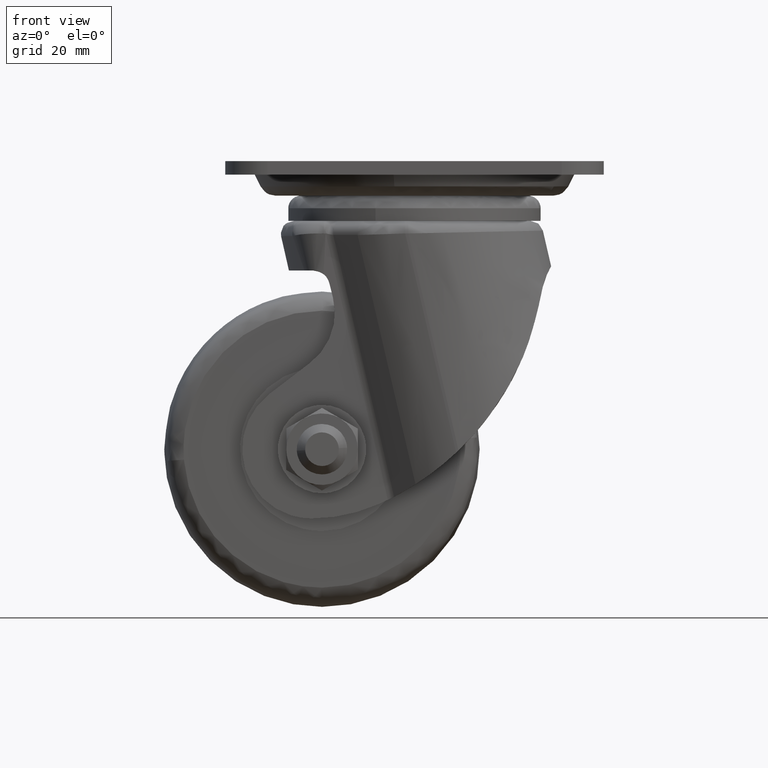
[diagram: clean part render]
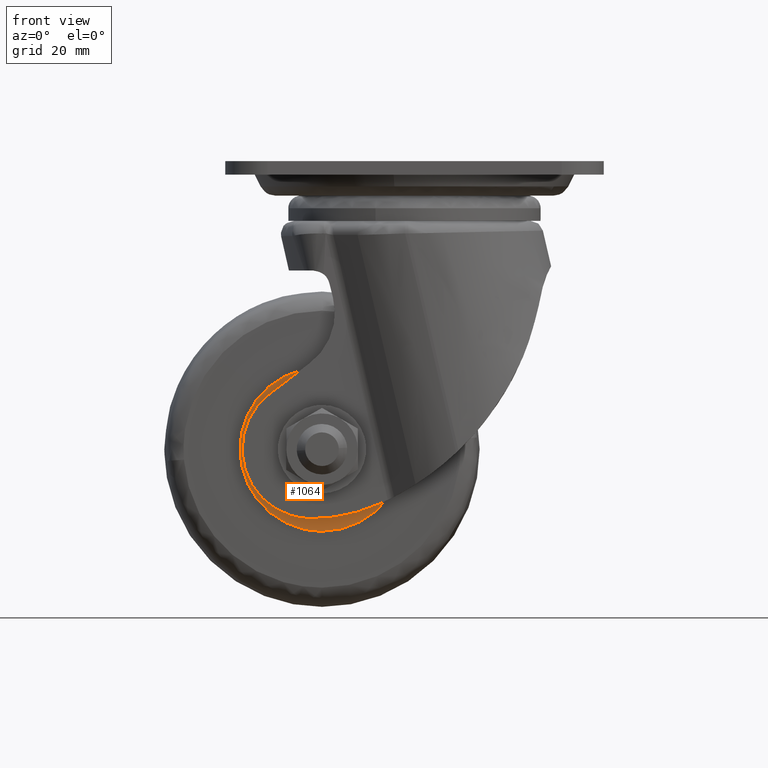
[diagram: same view with one face highlighted and labeled with its STEP entity id]
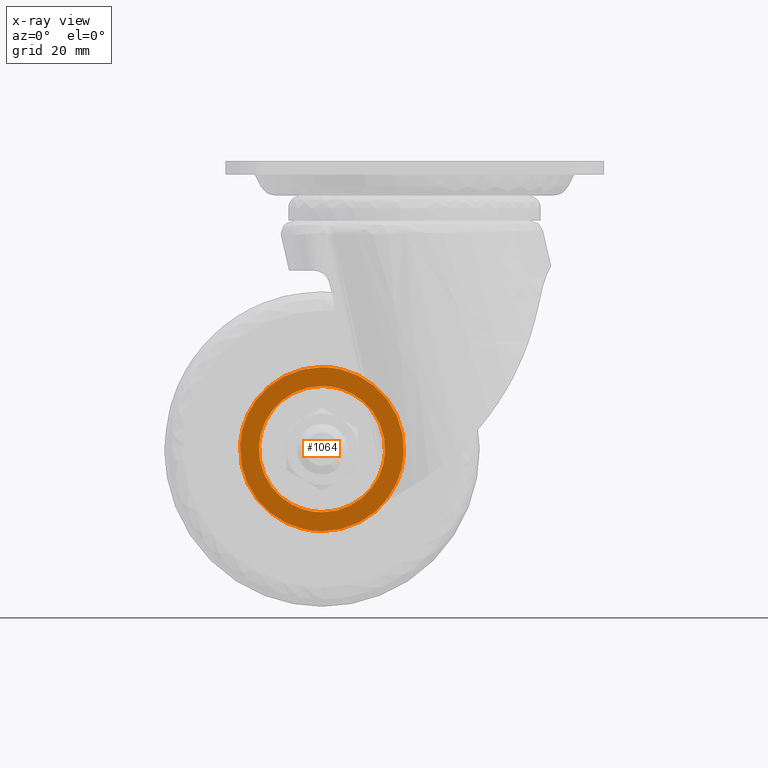
[diagram: x-ray of the same camera — body ghosted, the highlighted face saturated]
A machine part, front view. The second image highlights one B-rep face of the part: STEP entity #1064.
The next image is the same camera in x-ray: the body ghosted, the highlighted face saturated — about 0% of this face is hidden behind the body in this view.
In plain terms, the highlighted face is a freeform B-spline surface patch.
Its self-contained STEP definition (entity closure, byte-faithful):
#884=CARTESIAN_POINT('',(-7.027978023676605,-19.899999999999999,-69.415728093098195));
#885=VERTEX_POINT('',#884);
#891=CARTESIAN_POINT('',(-22.0,-19.899999999999999,-53.500000000000007));
#892=VERTEX_POINT('',#891);
#893=CARTESIAN_POINT('',(-7.027978023676604,-19.899999999999999,-69.415728093098195));
#894=CARTESIAN_POINT('',(-7.0,-19.900000000000006,-68.958291449516608));
#895=CARTESIAN_POINT('',(-7.0,-19.899999999999999,-68.500000000000000));
#896=CARTESIAN_POINT('',(-6.999999999999999,-19.900000000000009,-53.500000000000007));
#897=CARTESIAN_POINT('',(-22.0,-19.899999999999999,-53.500000000000007));
#905=(BOUNDED_CURVE()B_SPLINE_CURVE(2,(#893,#894,#895,#896,#897),.UNSPECIFIED.,.F.,.U.)B_SPLINE_CURVE_WITH_KNOTS((3,2,3),(0.239332962241100,0.250000000000000,0.500000000000000),.UNSPECIFIED.)CURVE()GEOMETRIC_REPRESENTATION_ITEM()RATIONAL_B_SPLINE_CURVE((0.976072041671341,0.987502787902365,1.0,0.707106781186547,1.0))REPRESENTATION_ITEM(''));
#906=EDGE_CURVE('',#885,#892,#905,.T.);
#908=CARTESIAN_POINT('',(-36.972021976323390,-19.899999999999999,-67.584271906901805));
#909=VERTEX_POINT('',#908);
#910=CARTESIAN_POINT('',(-22.0,-19.899999999999999,-53.500000000000007));
#911=CARTESIAN_POINT('',(-36.110591003514294,-19.900000000000006,-53.500000000000000));
#912=CARTESIAN_POINT('',(-36.972021976323397,-19.900000000000002,-67.584271906901819));
#920=(BOUNDED_CURVE()B_SPLINE_CURVE(2,(#910,#911,#912),.UNSPECIFIED.,.F.,.U.)B_SPLINE_CURVE_WITH_KNOTS((3,3),(0.500000000000000,0.739332962241100),.UNSPECIFIED.)CURVE()GEOMETRIC_REPRESENTATION_ITEM()RATIONAL_B_SPLINE_CURVE((1.0,0.719603993284183,0.976072041671341))REPRESENTATION_ITEM(''));
#921=EDGE_CURVE('',#892,#909,#920,.T.);
#953=CARTESIAN_POINT('',(-22.0,-19.899999999999999,-83.500000000000000));
#954=VERTEX_POINT('',#953);
#955=CARTESIAN_POINT('',(-36.972021976323390,-19.900000000000006,-67.584271906901805));
#956=CARTESIAN_POINT('',(-37.0,-19.900000000000006,-68.041708550483392));
#957=CARTESIAN_POINT('',(-37.0,-19.899999999999999,-68.500000000000000));
#958=CARTESIAN_POINT('',(-37.000000000000007,-19.900000000000009,-83.500000000000000));
#959=CARTESIAN_POINT('',(-22.0,-19.899999999999999,-83.500000000000000));
#967=(BOUNDED_CURVE()B_SPLINE_CURVE(2,(#955,#956,#957,#958,#959),.UNSPECIFIED.,.F.,.U.)B_SPLINE_CURVE_WITH_KNOTS((3,2,3),(0.739332962241100,0.750000000000000,1.0),.UNSPECIFIED.)CURVE()GEOMETRIC_REPRESENTATION_ITEM()RATIONAL_B_SPLINE_CURVE((0.976072041671341,0.987502787902365,1.0,0.707106781186547,1.0))REPRESENTATION_ITEM(''));
#968=EDGE_CURVE('',#909,#954,#967,.T.);
#970=CARTESIAN_POINT('',(-22.0,-19.899999999999999,-83.500000000000000));
#971=CARTESIAN_POINT('',(-7.889408996485720,-19.900000000000002,-83.500000000000014));
#972=CARTESIAN_POINT('',(-7.027978023676604,-19.899999999999999,-69.415728093098195));
#980=(BOUNDED_CURVE()B_SPLINE_CURVE(2,(#970,#971,#972),.UNSPECIFIED.,.F.,.U.)B_SPLINE_CURVE_WITH_KNOTS((3,3),(0.0,0.239332962241100),.UNSPECIFIED.)CURVE()GEOMETRIC_REPRESENTATION_ITEM()RATIONAL_B_SPLINE_CURVE((1.0,0.719603993284183,0.976072041671341))REPRESENTATION_ITEM(''));
#981=EDGE_CURVE('',#954,#885,#980,.T.);
#987=CARTESIAN_POINT('',(-43.447570052529180,-19.899999999999999,-89.948049924410455));
#988=CARTESIAN_POINT('',(-43.447570052529180,-19.899999999999999,-47.051949029528053));
#989=CARTESIAN_POINT('',(-0.552430644845163,-19.899999999999999,-89.948049924410455));
#990=CARTESIAN_POINT('',(-0.552430644845163,-19.899999999999999,-47.051949029528053));
#991=B_SPLINE_SURFACE_WITH_KNOTS('',1,1,((#987,#989),(#988,#990)),.UNSPECIFIED.,.F.,.F.,.U.,(2,2),(2,2),(0.0,42.896100894882402),(0.0,42.895139407684013),.UNSPECIFIED.);
#992=CARTESIAN_POINT('',(-22.0,-19.899999999999999,-88.000000000000014));
#993=VERTEX_POINT('',#992);
#994=CARTESIAN_POINT('',(-2.536369674674880,-19.899999999997259,-69.690417808274361));
#995=VERTEX_POINT('',#994);
#996=CARTESIAN_POINT('',(-22.0,-19.899999999999999,-88.000000000000014));
#997=CARTESIAN_POINT('',(-3.656204584122659,-19.899999999998631,-87.999999999999389));
#998=CARTESIAN_POINT('',(-2.536369674674881,-19.899999999997263,-69.690417808274361));
#1006=(BOUNDED_CURVE()B_SPLINE_CURVE(2,(#996,#997,#998),.UNSPECIFIED.,.F.,.U.)B_SPLINE_CURVE_WITH_KNOTS((3,3),(0.0,0.239333216782247),.UNSPECIFIED.)CURVE()GEOMETRIC_REPRESENTATION_ITEM()RATIONAL_B_SPLINE_CURVE((1.0,0.719603695070679,0.976072587202081))REPRESENTATION_ITEM(''));
#1007=EDGE_CURVE('',#993,#995,#1006,.T.);
#1008=ORIENTED_EDGE('',*,*,#1007,.T.);
#1009=CARTESIAN_POINT('',(-22.0,-19.899999999999999,-49.0));
#1010=VERTEX_POINT('',#1009);
#1011=CARTESIAN_POINT('',(-2.536369674674881,-19.899999999997263,-69.690417808274361));
#1012=CARTESIAN_POINT('',(-2.500000000020876,-19.899999999997302,-69.095764487741405));
#1013=CARTESIAN_POINT('',(-2.500000000020549,-19.899999999997348,-68.499999999998749));
#1014=CARTESIAN_POINT('',(-2.500000000009962,-19.899999999998720,-48.999999999999389));
#1015=CARTESIAN_POINT('',(-22.0,-19.899999999999999,-49.0));
#1023=(BOUNDED_CURVE()B_SPLINE_CURVE(2,(#1011,#1012,#1013,#1014,#1015),.UNSPECIFIED.,.F.,.U.)B_SPLINE_CURVE_WITH_KNOTS((3,2,3),(0.239333216782247,0.250000000000000,0.500000000000000),.UNSPECIFIED.)CURVE()GEOMETRIC_REPRESENTATION_ITEM()RATIONAL_B_SPLINE_CURVE((0.976072587202081,0.987503086115868,1.0,0.707106781186548,1.0))REPRESENTATION_ITEM(''));
#1024=EDGE_CURVE('',#995,#1010,#1023,.T.);
#1025=ORIENTED_EDGE('',*,*,#1024,.T.);
#1026=CARTESIAN_POINT('',(-41.463630325325120,-19.899999999997270,-67.309582191725653));
#1027=VERTEX_POINT('',#1026);
#1028=CARTESIAN_POINT('',(-22.0,-19.899999999999999,-49.0));
#1029=CARTESIAN_POINT('',(-40.343795415877338,-19.899999999998631,-49.000000000000647));
#1030=CARTESIAN_POINT('',(-41.463630325325113,-19.899999999997270,-67.309582191725653));
#1038=(BOUNDED_CURVE()B_SPLINE_CURVE(2,(#1028,#1029,#1030),.UNSPECIFIED.,.F.,.U.)B_SPLINE_CURVE_WITH_KNOTS((3,3),(0.500000000000000,0.739333216782247),.UNSPECIFIED.)CURVE()GEOMETRIC_REPRESENTATION_ITEM()RATIONAL_B_SPLINE_CURVE((1.0,0.719603695070679,0.976072587202081))REPRESENTATION_ITEM(''));
#1039=EDGE_CURVE('',#1010,#1027,#1038,.T.);
#1040=ORIENTED_EDGE('',*,*,#1039,.T.);
#1041=CARTESIAN_POINT('',(-41.463630325325120,-19.899999999997263,-67.309582191725653));
#1042=CARTESIAN_POINT('',(-41.499999999979124,-19.899999999997309,-67.904235512258595));
#1043=CARTESIAN_POINT('',(-41.499999999979451,-19.899999999997348,-68.500000000001251));
#1044=CARTESIAN_POINT('',(-41.499999999990038,-19.899999999998720,-88.000000000000625));
#1045=CARTESIAN_POINT('',(-22.0,-19.899999999999999,-88.000000000000014));
#1053=(BOUNDED_CURVE()B_SPLINE_CURVE(2,(#1041,#1042,#1043,#1044,#1045),.UNSPECIFIED.,.F.,.U.)B_SPLINE_CURVE_WITH_KNOTS((3,2,3),(0.739333216782248,0.750000000000000,1.0),.UNSPECIFIED.)CURVE()GEOMETRIC_REPRESENTATION_ITEM()RATIONAL_B_SPLINE_CURVE((0.976072587202081,0.987503086115869,1.0,0.707106781186548,1.0))REPRESENTATION_ITEM(''));
#1054=EDGE_CURVE('',#1027,#993,#1053,.T.);
#1055=ORIENTED_EDGE('',*,*,#1054,.T.);
#1056=EDGE_LOOP('',(#1008,#1025,#1040,#1055));
#1057=FACE_OUTER_BOUND('',#1056,.T.);
#1058=ORIENTED_EDGE('',*,*,#921,.F.);
#1059=ORIENTED_EDGE('',*,*,#906,.F.);
#1060=ORIENTED_EDGE('',*,*,#981,.F.);
#1061=ORIENTED_EDGE('',*,*,#968,.F.);
#1062=EDGE_LOOP('',(#1058,#1059,#1060,#1061));
#1063=FACE_BOUND('',#1062,.T.);
#1064=ADVANCED_FACE('',(#1057,#1063),#991,.F.);